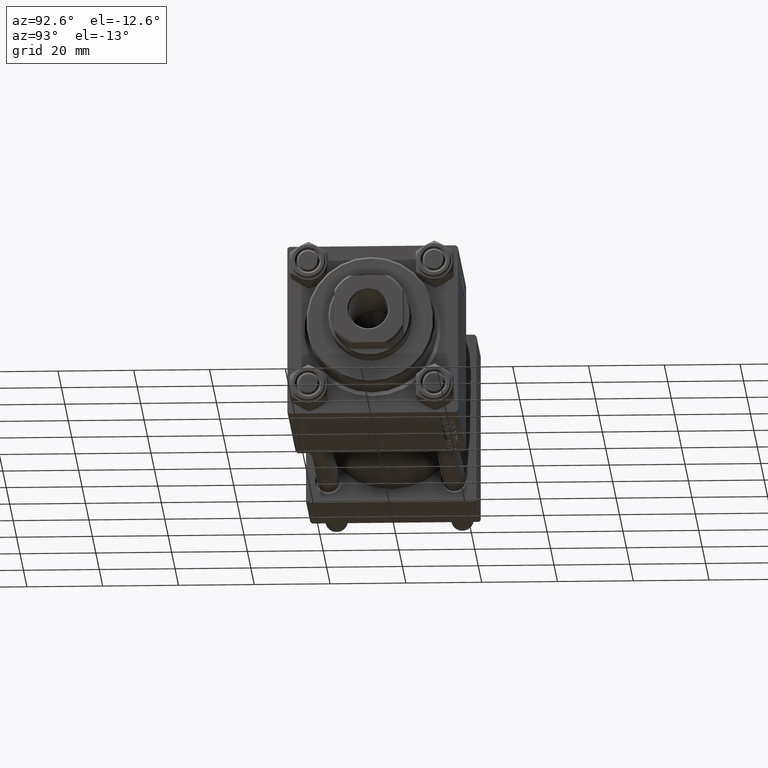
[diagram: clean part render]
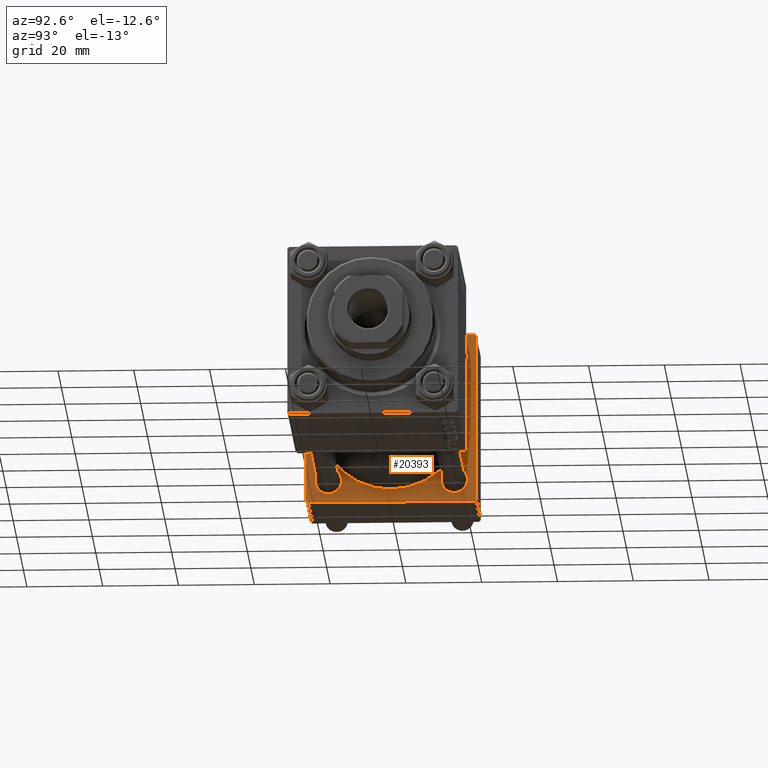
[diagram: same view with one face highlighted and labeled with its STEP entity id]
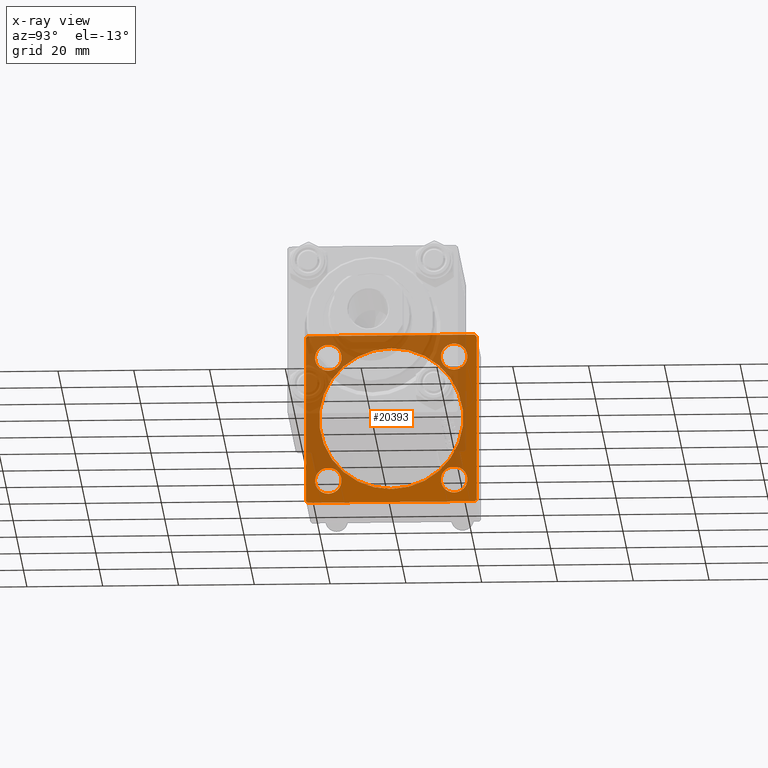
[diagram: x-ray of the same camera — body ghosted, the highlighted face saturated]
A machine part, auxiliary view. The second image highlights one B-rep face of the part: STEP entity #20393.
The next image is the same camera in x-ray: the body ghosted, the highlighted face saturated — about 54% of this face is hidden behind the body in this view.
In plain terms, the highlighted planar face has unit normal (-1, 0, 0).
Its self-contained STEP definition (entity closure, byte-faithful):
#129 = CARTESIAN_POINT ( 'NONE',  ( 25.00000000000000000, 16.59999999999999787, 16.60000000000000497 ) ) ;
#376 = AXIS2_PLACEMENT_3D ( 'NONE', #41261, #45284, #2902 ) ;
#540 = ORIENTED_EDGE ( 'NONE', *, *, #33818, .F. ) ;
#667 = EDGE_CURVE ( 'NONE', #5602, #18965, #27347, .T. ) ;
#794 = LINE ( 'NONE', #8611, #19186 ) ;
#2143 = VERTEX_POINT ( 'NONE', #45415 ) ;
#2483 = CARTESIAN_POINT ( 'NONE',  ( 25.00000000000000000, 0.000000000000000000, 0.000000000000000000 ) ) ;
#2604 = CARTESIAN_POINT ( 'NONE',  ( 25.00000000000000000, -16.59999999999999076, 16.60000000000000853 ) ) ;
#2902 = DIRECTION ( 'NONE',  ( 0.000000000000000000, 0.000000000000000000, 1.000000000000000000 ) ) ;
#3162 = VECTOR ( 'NONE', #49121, 1000.000000000000000 ) ;
#3789 = CIRCLE ( 'NONE', #7834, 19.00000000000000000 ) ;
#3846 = ORIENTED_EDGE ( 'NONE', *, *, #23490, .T. ) ;
#3925 = ORIENTED_EDGE ( 'NONE', *, *, #48488, .F. ) ;
#4188 = ORIENTED_EDGE ( 'NONE', *, *, #31040, .T. ) ;
#4229 = AXIS2_PLACEMENT_3D ( 'NONE', #2483, #14087, #10797 ) ;
#4474 = CARTESIAN_POINT ( 'NONE',  ( 25.00000000000000000, 16.59999999999999787, 16.60000000000000497 ) ) ;
#4578 = VERTEX_POINT ( 'NONE', #14787 ) ;
#4735 = CARTESIAN_POINT ( 'NONE',  ( 25.00000000000000000, 2.326828918379970970E-15, -19.00000000000000000 ) ) ;
#4780 = ORIENTED_EDGE ( 'NONE', *, *, #34623, .F. ) ;
#5032 = ORIENTED_EDGE ( 'NONE', *, *, #45832, .T. ) ;
#5482 = ORIENTED_EDGE ( 'NONE', *, *, #667, .T. ) ;
#5602 = VERTEX_POINT ( 'NONE', #23073 ) ;
#5627 = CARTESIAN_POINT ( 'NONE',  ( 25.00000000000000000, -16.59999999999999076, -16.60000000000000853 ) ) ;
#5878 = DIRECTION ( 'NONE',  ( -1.000000000000000000, 0.000000000000000000, -0.000000000000000000 ) ) ;
#6029 = FACE_OUTER_BOUND ( 'NONE', #38736, .T. ) ;
#6766 = FACE_BOUND ( 'NONE', #36506, .T. ) ;
#6837 = EDGE_LOOP ( 'NONE', ( #3846, #17164 ) ) ;
#6933 = CARTESIAN_POINT ( 'NONE',  ( 25.00000000000000000, 0.000000000000000000, 0.000000000000000000 ) ) ;
#7325 = LINE ( 'NONE', #22934, #34229 ) ;
#7513 = CARTESIAN_POINT ( 'NONE',  ( 25.00000000000000000, 16.59999999999999787, -20.09999999999996589 ) ) ;
#7543 = AXIS2_PLACEMENT_3D ( 'NONE', #4474, #26198, #35243 ) ;
#7730 = CARTESIAN_POINT ( 'NONE',  ( 25.00000000000000000, -22.50000000000000000, 22.00000000000000000 ) ) ;
#7834 = AXIS2_PLACEMENT_3D ( 'NONE', #32844, #17721, #20509 ) ;
#8138 = CARTESIAN_POINT ( 'NONE',  ( 25.00000000000000000, -16.59999999999999076, -20.09999999999998366 ) ) ;
#8611 = CARTESIAN_POINT ( 'NONE',  ( 25.00000000000000000, 21.99999999999999289, 22.50000000000000355 ) ) ;
#8798 = ORIENTED_EDGE ( 'NONE', *, *, #41327, .T. ) ;
#9033 = DIRECTION ( 'NONE',  ( 0.000000000000000000, 0.000000000000000000, 1.000000000000000000 ) ) ;
#9063 = ORIENTED_EDGE ( 'NONE', *, *, #12555, .T. ) ;
#9232 = CARTESIAN_POINT ( 'NONE',  ( 25.00000000000000000, 16.59999999999999787, -16.60000000000000497 ) ) ;
#9259 = EDGE_CURVE ( 'NONE', #11570, #46192, #794, .T. ) ;
#9971 = DIRECTION ( 'NONE',  ( -1.000000000000000000, 0.000000000000000000, -0.000000000000000000 ) ) ;
#10261 = AXIS2_PLACEMENT_3D ( 'NONE', #6933, #42017, #19036 ) ;
#10797 = DIRECTION ( 'NONE',  ( -0.000000000000000000, 0.000000000000000000, 1.000000000000000000 ) ) ;
#10938 = VERTEX_POINT ( 'NONE', #35152 ) ;
#11363 = DIRECTION ( 'NONE',  ( 0.000000000000000000, 0.000000000000000000, -1.000000000000000000 ) ) ;
#11489 = VECTOR ( 'NONE', #45588, 1000.000000000000000 ) ;
#11570 = VERTEX_POINT ( 'NONE', #38075 ) ;
#12082 = EDGE_LOOP ( 'NONE', ( #17612, #4188 ) ) ;
#12141 = DIRECTION ( 'NONE',  ( 0.000000000000000000, -0.7071067811865474617, 0.7071067811865474617 ) ) ;
#12555 = EDGE_CURVE ( 'NONE', #46192, #5602, #18585, .T. ) ;
#12801 = VERTEX_POINT ( 'NONE', #20328 ) ;
#12858 = AXIS2_PLACEMENT_3D ( 'NONE', #9232, #9971, #21549 ) ;
#13046 = DIRECTION ( 'NONE',  ( -0.000000000000000000, 0.7071067811865426878, 0.7071067811865524577 ) ) ;
#13222 = EDGE_CURVE ( 'NONE', #11570, #42852, #43744, .T. ) ;
#13837 = FACE_BOUND ( 'NONE', #6837, .T. ) ;
#13880 = DIRECTION ( 'NONE',  ( 0.000000000000000000, 0.000000000000000000, -1.000000000000000000 ) ) ;
#14087 = DIRECTION ( 'NONE',  ( -1.000000000000000000, 0.000000000000000000, -0.000000000000000000 ) ) ;
#14246 = CARTESIAN_POINT ( 'NONE',  ( 25.00000000000000000, -16.59999999999999076, 13.10000000000002807 ) ) ;
#14615 = AXIS2_PLACEMENT_3D ( 'NONE', #47981, #20723, #35387 ) ;
#14787 = CARTESIAN_POINT ( 'NONE',  ( 25.00000000000000000, 0.000000000000000000, 19.00000000000000000 ) ) ;
#15061 = LINE ( 'NONE', #30414, #11489 ) ;
#15533 = CIRCLE ( 'NONE', #42957, 3.499999999999978684 ) ;
#16158 = VECTOR ( 'NONE', #30652, 999.9999999999998863 ) ;
#16227 = CARTESIAN_POINT ( 'NONE',  ( 25.00000000000000000, -21.99999999999998579, -22.50000000000000711 ) ) ;
#17164 = ORIENTED_EDGE ( 'NONE', *, *, #40431, .T. ) ;
#17277 = CARTESIAN_POINT ( 'NONE',  ( 25.00000000000000000, 16.59999999999999787, 13.10000000000004228 ) ) ;
#17456 = VERTEX_POINT ( 'NONE', #17277 ) ;
#17612 = ORIENTED_EDGE ( 'NONE', *, *, #33887, .T. ) ;
#17721 = DIRECTION ( 'NONE',  ( 1.000000000000000000, -0.000000000000000000, 0.000000000000000000 ) ) ;
#18585 = LINE ( 'NONE', #48626, #3162 ) ;
#18965 = VERTEX_POINT ( 'NONE', #22666 ) ;
#19036 = DIRECTION ( 'NONE',  ( 0.000000000000000000, 0.000000000000000000, 1.000000000000000000 ) ) ;
#19186 = VECTOR ( 'NONE', #12141, 1000.000000000000114 ) ;
#19350 = CARTESIAN_POINT ( 'NONE',  ( 25.00000000000000000, -16.59999999999999076, -13.10000000000003162 ) ) ;
#19588 = ORIENTED_EDGE ( 'NONE', *, *, #36892, .T. ) ;
#19698 = VERTEX_POINT ( 'NONE', #4735 ) ;
#20268 = CIRCLE ( 'NONE', #14615, 3.499999999999961364 ) ;
#20328 = CARTESIAN_POINT ( 'NONE',  ( 25.00000000000000000, 21.99999999999999289, -22.49999999999999645 ) ) ;
#20393 = ADVANCED_FACE ( 'NONE', ( #37052, #33985, #6766, #13837, #22126, #6029 ), #21390, .F. ) ;
#20509 = DIRECTION ( 'NONE',  ( 0.000000000000000000, 0.000000000000000000, 1.000000000000000000 ) ) ;
#20723 = DIRECTION ( 'NONE',  ( -1.000000000000000000, 0.000000000000000000, -0.000000000000000000 ) ) ;
#21059 = EDGE_CURVE ( 'NONE', #2143, #37910, #28033, .T. ) ;
#21351 = CARTESIAN_POINT ( 'NONE',  ( 25.00000000000000000, -21.99999999999997158, -22.50000000000000711 ) ) ;
#21377 = EDGE_CURVE ( 'NONE', #33599, #10938, #15533, .T. ) ;
#21390 = PLANE ( 'NONE',  #4229 ) ;
#21461 = ORIENTED_EDGE ( 'NONE', *, *, #21059, .T. ) ;
#21509 = DIRECTION ( 'NONE',  ( 0.000000000000000000, 0.000000000000000000, 1.000000000000000000 ) ) ;
#21549 = DIRECTION ( 'NONE',  ( 0.000000000000000000, 0.000000000000000000, 1.000000000000000000 ) ) ;
#22069 = CIRCLE ( 'NONE', #376, 3.499999999999975131 ) ;
#22126 = FACE_BOUND ( 'NONE', #46264, .T. ) ;
#22534 = CARTESIAN_POINT ( 'NONE',  ( 25.00000000000000000, 16.59999999999999787, -13.10000000000004228 ) ) ;
#22666 = CARTESIAN_POINT ( 'NONE',  ( 25.00000000000000000, -22.50000000000000000, 22.00000000000000000 ) ) ;
#22931 = CARTESIAN_POINT ( 'NONE',  ( 25.00000000000000000, 22.50000000000000000, -21.99999999999996803 ) ) ;
#22934 = CARTESIAN_POINT ( 'NONE',  ( 25.00000000000000000, -22.50000000000000000, 22.50000000000000000 ) ) ;
#23073 = CARTESIAN_POINT ( 'NONE',  ( 25.00000000000000000, -21.99999999999997868, 22.50000000000000000 ) ) ;
#23490 = EDGE_CURVE ( 'NONE', #17456, #46378, #30885, .T. ) ;
#25672 = VERTEX_POINT ( 'NONE', #7513 ) ;
#26177 = ORIENTED_EDGE ( 'NONE', *, *, #44549, .T. ) ;
#26198 = DIRECTION ( 'NONE',  ( -1.000000000000000000, 0.000000000000000000, -0.000000000000000000 ) ) ;
#26352 = CIRCLE ( 'NONE', #10261, 19.00000000000000000 ) ;
#26515 = EDGE_CURVE ( 'NONE', #18965, #2143, #7325, .T. ) ;
#27347 = LINE ( 'NONE', #7730, #16158 ) ;
#27893 = VERTEX_POINT ( 'NONE', #19350 ) ;
#28033 = LINE ( 'NONE', #16227, #42132 ) ;
#28403 = LINE ( 'NONE', #28894, #38546 ) ;
#28599 = VERTEX_POINT ( 'NONE', #8138 ) ;
#28800 = DIRECTION ( 'NONE',  ( 0.000000000000000000, 0.000000000000000000, 1.000000000000000000 ) ) ;
#28894 = CARTESIAN_POINT ( 'NONE',  ( 25.00000000000000000, 22.50000000000000000, -21.99999999999998224 ) ) ;
#30414 = CARTESIAN_POINT ( 'NONE',  ( 25.00000000000000000, 22.50000000000000000, -22.49999999999999645 ) ) ;
#30652 = DIRECTION ( 'NONE',  ( -0.000000000000000000, -0.7071067811865525687, -0.7071067811865425767 ) ) ;
#30866 = DIRECTION ( 'NONE',  ( 0.000000000000000000, 0.000000000000000000, 1.000000000000000000 ) ) ;
#30885 = CIRCLE ( 'NONE', #7543, 3.499999999999961364 ) ;
#31040 = EDGE_CURVE ( 'NONE', #27893, #28599, #22069, .T. ) ;
#31777 = CARTESIAN_POINT ( 'NONE',  ( 25.00000000000000000, 21.99999999999999289, 22.50000000000000355 ) ) ;
#31839 = DIRECTION ( 'NONE',  ( 0.000000000000000000, 0.7071067811865426878, -0.7071067811865524577 ) ) ;
#32844 = CARTESIAN_POINT ( 'NONE',  ( 25.00000000000000000, 0.000000000000000000, 0.000000000000000000 ) ) ;
#33599 = VERTEX_POINT ( 'NONE', #14246 ) ;
#33818 = EDGE_CURVE ( 'NONE', #19698, #4578, #3789, .T. ) ;
#33850 = CIRCLE ( 'NONE', #40325, 3.499999999999978684 ) ;
#33887 = EDGE_CURVE ( 'NONE', #28599, #27893, #35226, .T. ) ;
#33985 = FACE_BOUND ( 'NONE', #48954, .T. ) ;
#34229 = VECTOR ( 'NONE', #11363, 1000.000000000000000 ) ;
#34310 = ORIENTED_EDGE ( 'NONE', *, *, #9259, .T. ) ;
#34592 = VECTOR ( 'NONE', #13880, 1000.000000000000000 ) ;
#34623 = EDGE_CURVE ( 'NONE', #4578, #19698, #26352, .T. ) ;
#35152 = CARTESIAN_POINT ( 'NONE',  ( 25.00000000000000000, -16.59999999999999076, 20.09999999999998721 ) ) ;
#35226 = CIRCLE ( 'NONE', #39279, 3.499999999999975131 ) ;
#35243 = DIRECTION ( 'NONE',  ( 0.000000000000000000, 0.000000000000000000, 1.000000000000000000 ) ) ;
#35387 = DIRECTION ( 'NONE',  ( 0.000000000000000000, 0.000000000000000000, 1.000000000000000000 ) ) ;
#36506 = EDGE_LOOP ( 'NONE', ( #47411, #26177 ) ) ;
#36892 = EDGE_CURVE ( 'NONE', #12801, #42852, #28403, .T. ) ;
#36927 = DIRECTION ( 'NONE',  ( -1.000000000000000000, 0.000000000000000000, -0.000000000000000000 ) ) ;
#36996 = ORIENTED_EDGE ( 'NONE', *, *, #13222, .F. ) ;
#37052 = FACE_BOUND ( 'NONE', #12082, .T. ) ;
#37910 = VERTEX_POINT ( 'NONE', #21351 ) ;
#38075 = CARTESIAN_POINT ( 'NONE',  ( 25.00000000000000000, 22.50000000000000000, 21.99999999999999645 ) ) ;
#38546 = VECTOR ( 'NONE', #13046, 1000.000000000000000 ) ;
#38736 = EDGE_LOOP ( 'NONE', ( #3925, #19588, #36996, #34310, #9063, #5482, #42338, #21461 ) ) ;
#39073 = CARTESIAN_POINT ( 'NONE',  ( 25.00000000000000000, 16.59999999999999787, 20.09999999999996589 ) ) ;
#39279 = AXIS2_PLACEMENT_3D ( 'NONE', #5627, #5878, #28800 ) ;
#39381 = CIRCLE ( 'NONE', #42630, 3.499999999999961364 ) ;
#40325 = AXIS2_PLACEMENT_3D ( 'NONE', #2604, #36927, #21509 ) ;
#40431 = EDGE_CURVE ( 'NONE', #46378, #17456, #39381, .T. ) ;
#41261 = CARTESIAN_POINT ( 'NONE',  ( 25.00000000000000000, -16.59999999999999076, -16.60000000000000853 ) ) ;
#41327 = EDGE_CURVE ( 'NONE', #41552, #25672, #45918, .T. ) ;
#41552 = VERTEX_POINT ( 'NONE', #22534 ) ;
#42017 = DIRECTION ( 'NONE',  ( 1.000000000000000000, -0.000000000000000000, 0.000000000000000000 ) ) ;
#42132 = VECTOR ( 'NONE', #31839, 1000.000000000000000 ) ;
#42258 = DIRECTION ( 'NONE',  ( -1.000000000000000000, 0.000000000000000000, -0.000000000000000000 ) ) ;
#42338 = ORIENTED_EDGE ( 'NONE', *, *, #26515, .T. ) ;
#42630 = AXIS2_PLACEMENT_3D ( 'NONE', #129, #42258, #30866 ) ;
#42852 = VERTEX_POINT ( 'NONE', #22931 ) ;
#42957 = AXIS2_PLACEMENT_3D ( 'NONE', #47859, #43591, #9033 ) ;
#43591 = DIRECTION ( 'NONE',  ( -1.000000000000000000, 0.000000000000000000, -0.000000000000000000 ) ) ;
#43744 = LINE ( 'NONE', #48442, #34592 ) ;
#44549 = EDGE_CURVE ( 'NONE', #10938, #33599, #33850, .T. ) ;
#45284 = DIRECTION ( 'NONE',  ( -1.000000000000000000, 0.000000000000000000, -0.000000000000000000 ) ) ;
#45415 = CARTESIAN_POINT ( 'NONE',  ( 25.00000000000000000, -22.50000000000000000, -21.99999999999997158 ) ) ;
#45588 = DIRECTION ( 'NONE',  ( 0.000000000000000000, -1.000000000000000000, -2.312964634635742957E-16 ) ) ;
#45832 = EDGE_CURVE ( 'NONE', #25672, #41552, #20268, .T. ) ;
#45918 = CIRCLE ( 'NONE', #12858, 3.499999999999961364 ) ;
#46192 = VERTEX_POINT ( 'NONE', #31777 ) ;
#46264 = EDGE_LOOP ( 'NONE', ( #4780, #540 ) ) ;
#46378 = VERTEX_POINT ( 'NONE', #39073 ) ;
#47411 = ORIENTED_EDGE ( 'NONE', *, *, #21377, .T. ) ;
#47859 = CARTESIAN_POINT ( 'NONE',  ( 25.00000000000000000, -16.59999999999999076, 16.60000000000000853 ) ) ;
#47981 = CARTESIAN_POINT ( 'NONE',  ( 25.00000000000000000, 16.59999999999999787, -16.60000000000000497 ) ) ;
#48442 = CARTESIAN_POINT ( 'NONE',  ( 25.00000000000000000, 22.50000000000000000, 22.50000000000000355 ) ) ;
#48488 = EDGE_CURVE ( 'NONE', #12801, #37910, #15061, .T. ) ;
#48626 = CARTESIAN_POINT ( 'NONE',  ( 25.00000000000000000, 22.50000000000000000, 22.50000000000000355 ) ) ;
#48954 = EDGE_LOOP ( 'NONE', ( #5032, #8798 ) ) ;
#49121 = DIRECTION ( 'NONE',  ( 0.000000000000000000, -1.000000000000000000, -7.709882115452476934E-17 ) ) ;